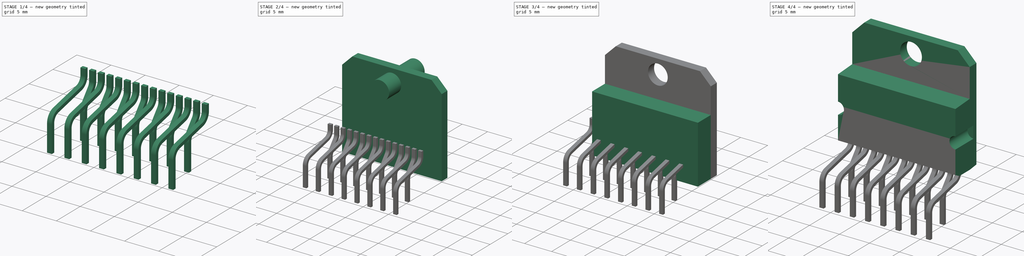
[diagram: build sequence overview — one tinted view per stage of 4, left to right]
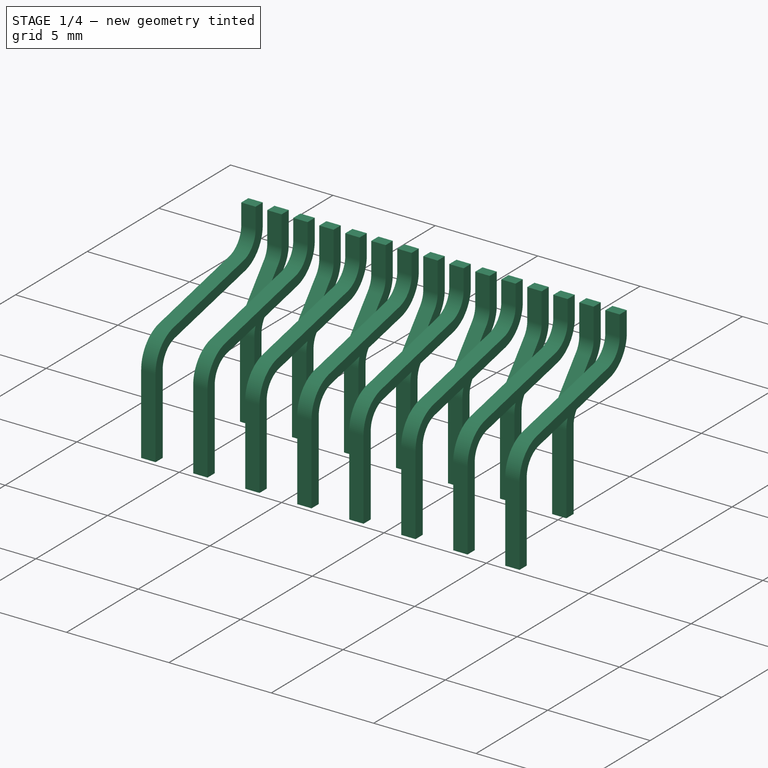
[diagram: stage 1 of 4 — iso view after this stage's code; geometry added in this stage tinted green]
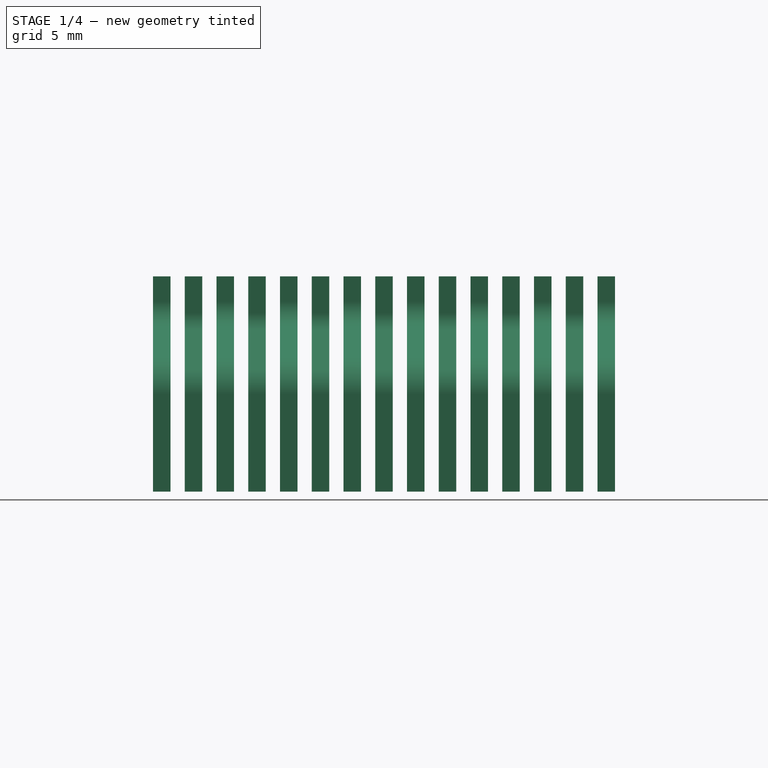
[diagram: stage 1 of 4 — front view after this stage's code; geometry added in this stage tinted green]
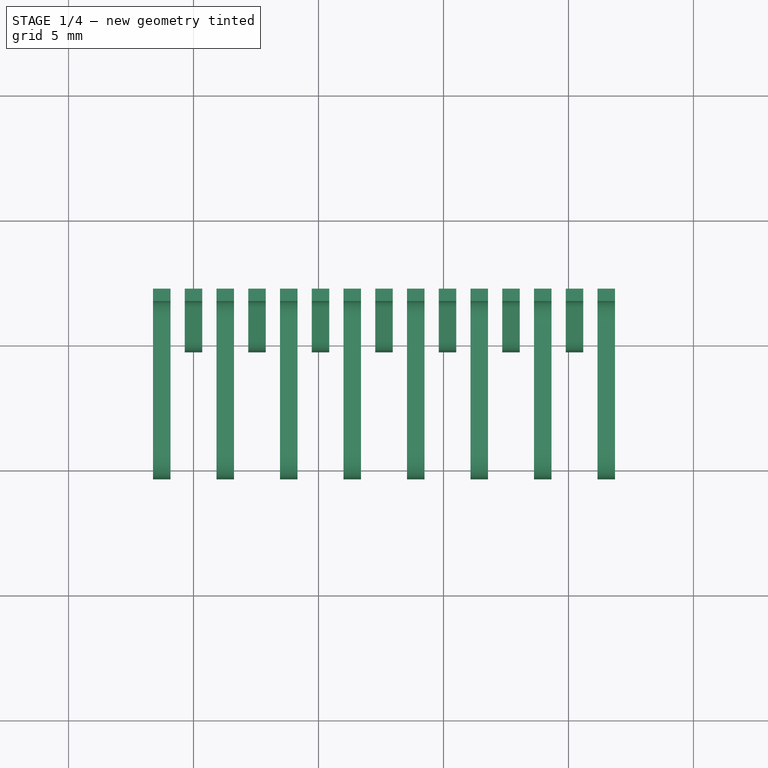
[diagram: stage 1 of 4 — top view after this stage's code; geometry added in this stage tinted green]
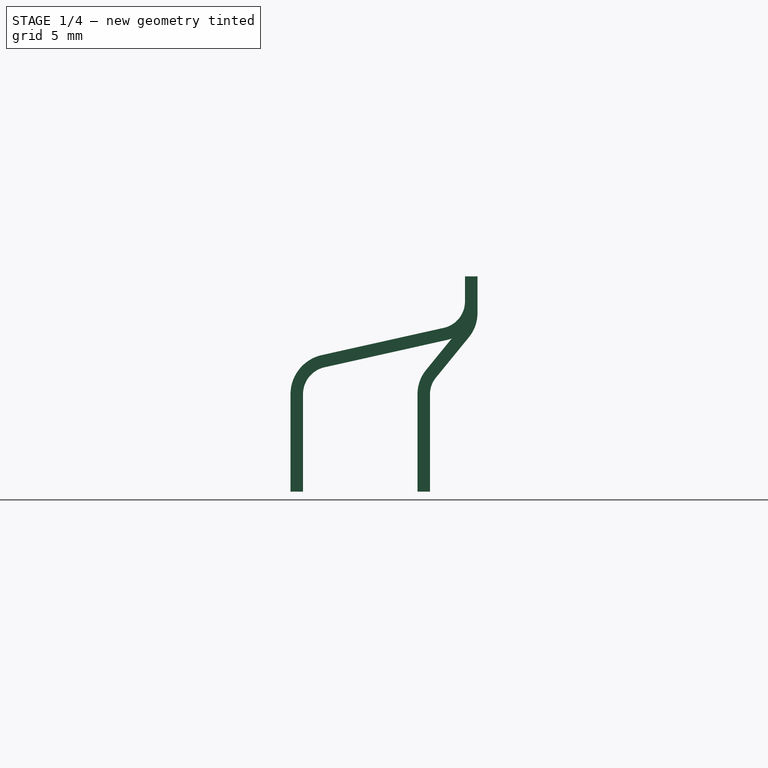
[diagram: stage 1 of 4 — right view after this stage's code; geometry added in this stage tinted green]
FCSTD DOCUMENT  (FreeCAD 0.14R3700 (Git))
Label: l298
License: CC-BY 3.0
LicenseURL: http://creativecommons.org/licenses/by/3.0/
objects: Part::Feature×5, Sketcher::SketchObject×5, Part::FeaturePython×3, Part::Box×2, Part::Cylinder×2, Part::Cut×2, Part::Sweep×2, App::DocumentObjectGroup×1, Part::Chamfer×1, Part::MultiFuse×1, PartDesign::Pocket×1, Part::Part2DObjectPython×1
note: 26 computed .brp shape members not serialized (recipe doc carries the construction recipe); baked Part::Feature solids carry a one-line shape summary decoded from their .brp

FEATURE [Sketcher::SketchObject] Sketch001  label="barrido-1"
  Placement = pos=(0,0,0) rot=(0.57735,0.57735,0.57735;2.0944rad)
  sketch-geometry (5):
    g0: LineSegment StartX=-5.08 StartY=-3.4 StartZ=0 EndX=-5.08 EndY=0.5 EndZ=0
    g1: LineSegment StartX=-4.02992 StartY=1.81041 StartZ=0 EndX=0.849917 EndY=2.9 EndZ=0
    g2: LineSegment StartX=1.9 StartY=5.21041 StartZ=0 EndX=1.9 EndY=4.21041 EndZ=0
    g3: ArcOfCircle CenterX=-3.73732 CenterY=0.5 CenterZ=0 NormalX=0 NormalY=0 NormalZ=1 Radius=1.34268 StartAngle=1.79048 EndAngle=3.14159
    g4: ArcOfCircle CenterX=0.557324 CenterY=4.21041 CenterZ=0 NormalX=0 NormalY=0 NormalZ=1 Radius=1.34268 StartAngle=4.93207 EndAngle=6.28319
  constraints (14):
    c: Tangent(g1,g3)
    c: Tangent(g0,g3)
    c: Tangent(g1,g4)
    c: Tangent(g2,g4)
    c: DistanceY(g2) = -1
    c: Vertical(g2)
    c: DistanceX(g2,g0) = -6.98
    c: Vertical(g0)
    c: Distance(g1) = 5
    c: Equal(g3,g4)
    c: DistanceY(g1,g2) = 3.4
    c: DistanceY(g0) = 0.5
    c: DistanceX(g0) = -5.08
    c: DistanceY(g0) = -3.4
FEATURE [Sketcher::SketchObject] Sketch002  label="seccion-1"
  Placement = pos=(0,0,-3.4) rot=(1,0,0;3.14159rad)
  sketch-geometry (5):
    g0: LineSegment StartX=-0.35 StartY=5.33936 StartZ=0 EndX=0.35 EndY=5.33936 EndZ=0
    g1: LineSegment StartX=0.35 StartY=5.33936 StartZ=0 EndX=0.35 EndY=4.83936 EndZ=0
    g2: LineSegment StartX=0.35 StartY=4.83936 StartZ=0 EndX=-0.35 EndY=4.83936 EndZ=0
    g3: LineSegment StartX=-0.35 StartY=4.83936 StartZ=0 EndX=-0.35 EndY=5.33936 EndZ=0
    g4: LineSegment [constr] StartX=-2.9001 StartY=5.08936 StartZ=0 EndX=2.81398 EndY=5.08936 EndZ=0
  constraints (15):
    c: Coincident(g0,g1)
    c: Coincident(g1,g2)
    c: Coincident(g2,g3)
    c: Coincident(g3,g0)
    c: Horizontal(g0)
    c: Horizontal(g2)
    c: Vertical(g1)
    c: Vertical(g3)
    c: DistanceX(g2) = -0.7
    c: Symmetric(g2,g1,g-2)
    c: DistanceY(g3) = 0.5
    c: Horizontal(g4)
    c: DistanceY(g4) = 5.08936
    c: Symmetric(g2,g0,g4)
    c: Symmetric(g0,g0,g-2)
FEATURE [Part::Sweep] Sweep
  Frenet = false
  Sections = -> [Sketch002]
  Solid = true
  Spine = -> Sketch001 [Edge1,Edge2,Edge3,Edge4,Edge5]
  Transition = 1
FEATURE [Sketcher::SketchObject] Sketch003  label="barrido-2"
  Placement = pos=(0,0,0) rot=(0.57735,0.57735,0.57735;2.0944rad)
  sketch-geometry (5):
    g0: LineSegment StartX=0 StartY=-3.4 StartZ=0 EndX=0 EndY=0.5 EndZ=0
    g1: LineSegment StartX=0.28844 StartY=1.30961 StartZ=0 EndX=1.61156 EndY=2.93082 EndZ=0
    g2: LineSegment StartX=1.9 StartY=3.74042 StartZ=0 EndX=1.9 EndY=5.21328 EndZ=0
    g3: ArcOfCircle CenterX=0.619554 CenterY=3.74042 CenterZ=0 NormalX=0 NormalY=0 NormalZ=1 Radius=1.28045 StartAngle=5.59868 EndAngle=6.28319
    g4: ArcOfCircle CenterX=1.28045 CenterY=0.5 CenterZ=0 NormalX=0 NormalY=0 NormalZ=1 Radius=1.28045 StartAngle=2.45709 EndAngle=3.14159
  constraints (11):
    c: Tangent(g2,g3)
    c: Tangent(g1,g3)
    c: Tangent(g1,g4)
    c: Tangent(g0,g4)
    c: DistanceY(g0) = 0.5
    c: Vertical(g0)
    c: Vertical(g2)
    c: DistanceX(g0,g2) = 1.9
    c: DistanceY(g0) = -3.4
    c: DistanceX(g0) = 0
    c: Equal(g4,g3)
FEATURE [Sketcher::SketchObject] Sketch004  label="seccion-2"
  Placement = pos=(0,5.08,-3.4) rot=(1,0,0;3.14159rad)
  sketch-geometry (5):
    g0: LineSegment StartX=-0.35 StartY=5.33936 StartZ=0 EndX=0.35 EndY=5.33936 EndZ=0
    g1: LineSegment StartX=0.35 StartY=5.33936 StartZ=0 EndX=0.35 EndY=4.83936 EndZ=0
    g2: LineSegment StartX=0.35 StartY=4.83936 StartZ=0 EndX=-0.35 EndY=4.83936 EndZ=0
    g3: LineSegment StartX=-0.35 StartY=4.83936 StartZ=0 EndX=-0.35 EndY=5.33936 EndZ=0
    g4: LineSegment [constr] StartX=-2.9001 StartY=5.08936 StartZ=0 EndX=2.81398 EndY=5.08936 EndZ=0
  constraints (15):
    c: Coincident(g0,g1)
    c: Coincident(g1,g2)
    c: Coincident(g2,g3)
    c: Coincident(g3,g0)
    c: Horizontal(g0)
    c: Horizontal(g2)
    c: Vertical(g1)
    c: Vertical(g3)
    c: DistanceX(g2) = -0.7
    c: Symmetric(g2,g1,g-2)
    c: DistanceY(g3) = 0.5
    c: Horizontal(g4)
    c: DistanceY(g4) = 5.08936
    c: Symmetric(g2,g0,g4)
    c: Symmetric(g0,g0,g-2)
FEATURE [Part::Sweep] Sweep001
  Frenet = false
  Sections = -> [Sketch004]
  Solid = true
  Spine = -> Sketch003 [Edge1,Edge2,Edge3,Edge4,Edge5]
  Transition = 1
FEATURE [Part::FeaturePython] Array001  # Draft array (typed FeaturePython)
  Angle = 360
  ArrayType = 0
  Axis = (0,0,1)
  Base = -> Sweep001
  Center = (0,0,0)
  IntervalX = (2.54,0,0)
  IntervalY = (0,1,0)
  IntervalZ = (0,0,1)
  NumberPolar = 1
  NumberX = 7
  NumberY = 1
  NumberZ = 1
FEATURE [Part::FeaturePython] Array002  # Draft array (typed FeaturePython)
  Angle = 360
  ArrayType = 0
  Axis = (0,0,1)
  Base = -> Sweep
  Center = (0,0,0)
  IntervalX = (2.54,0,0)
  IntervalY = (0,1,0)
  IntervalZ = (0,0,1)
  NumberPolar = 1
  NumberX = 8
  NumberY = 1
  NumberZ = 1
  Placement = pos=(-1.27,0,0) rot=(0,0,1;0rad)
FEATURE [Part::Part2DObjectPython] ShapeString  # Draft 2D object (typed FeaturePython)
  FontFile = C:/Program Files/FreeCAD 0.14/fonts/arial.ttf
  Placement = pos=(3.5,-0.01,8.8469) rot=(1,0,0;1.5708rad)
  Size = 2
  String = L298N
  Tracking = 0
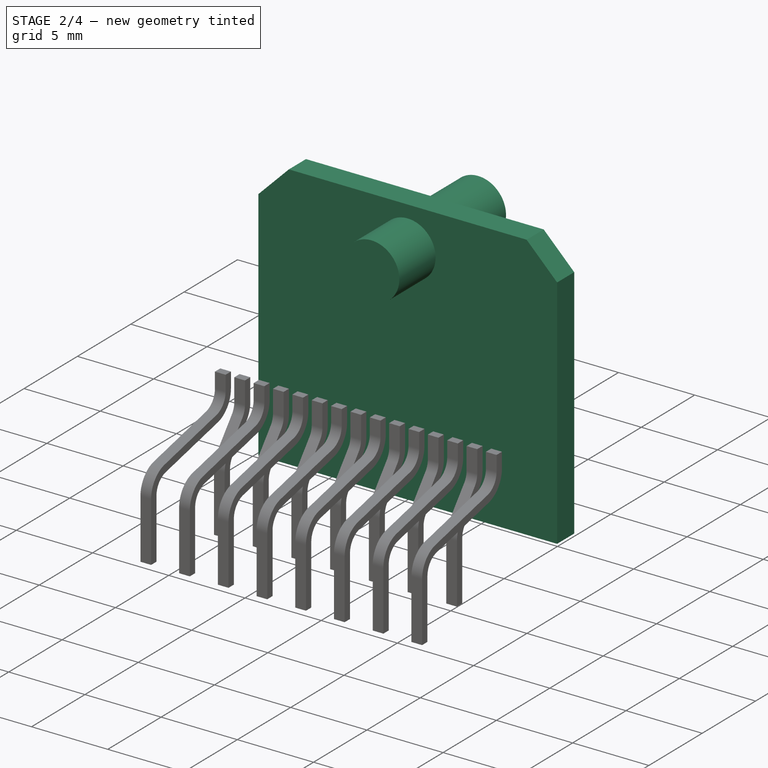
[diagram: stage 2 of 4 — iso view after this stage's code; geometry added in this stage tinted green]
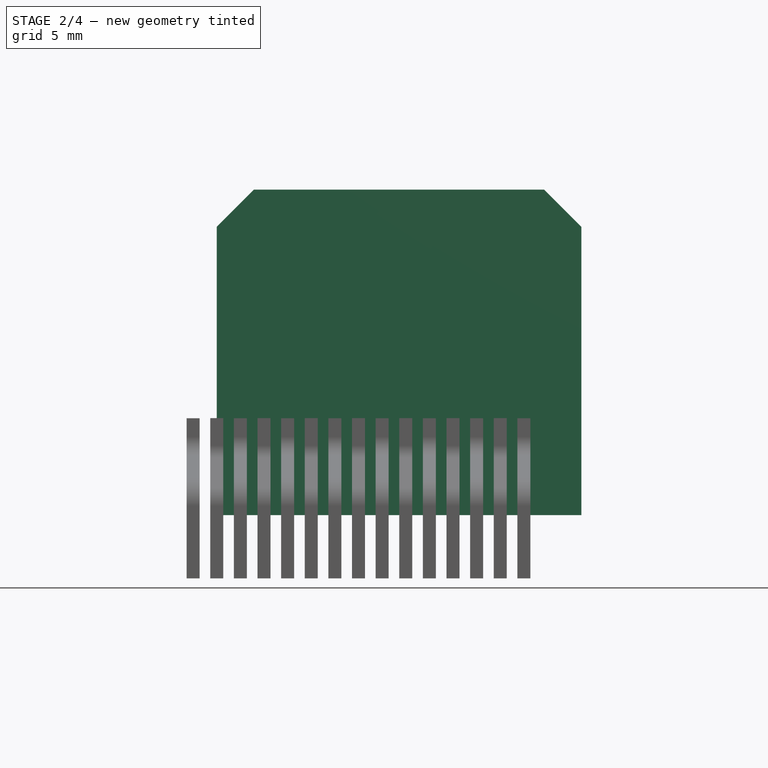
[diagram: stage 2 of 4 — front view after this stage's code; geometry added in this stage tinted green]
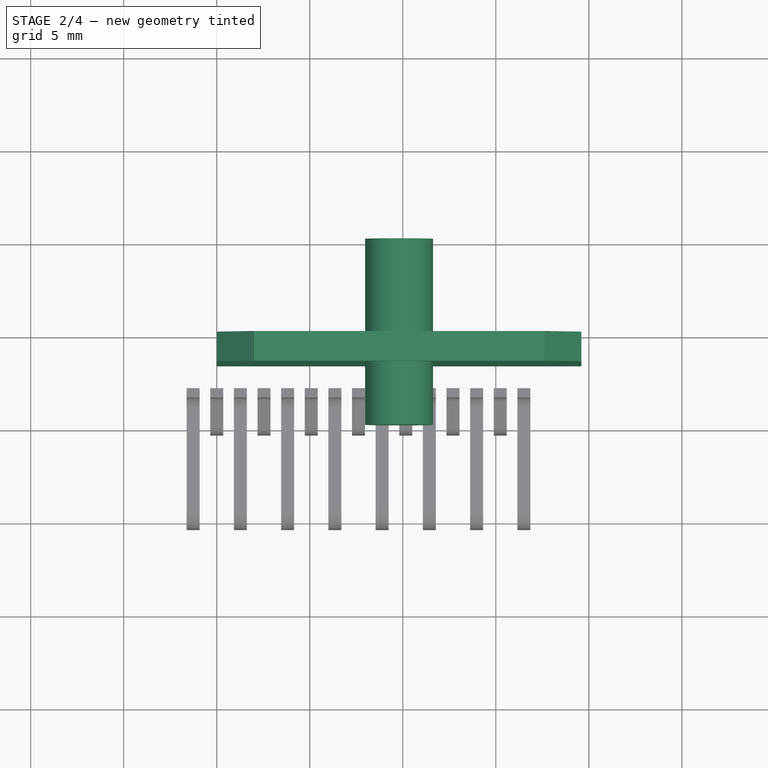
[diagram: stage 2 of 4 — top view after this stage's code; geometry added in this stage tinted green]
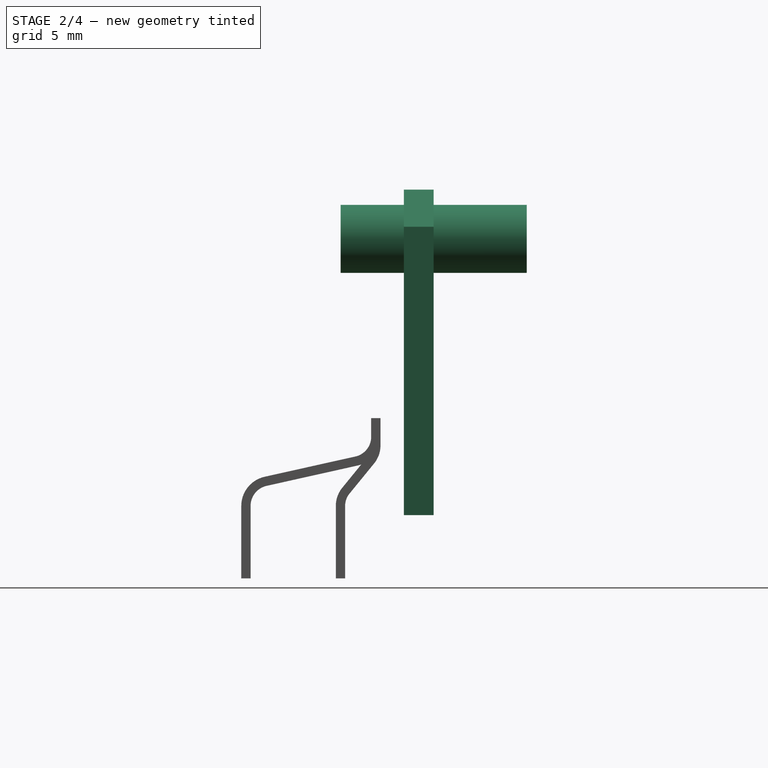
[diagram: stage 2 of 4 — right view after this stage's code; geometry added in this stage tinted green]
FEATURE [Part::Box] Box001  label="Cubo001"
  Height = 17.5
  Length = 19.6
  Placement = pos=(0,3.4,0) rot=(0,0,1;0rad)
  Width = 1.6
FEATURE [Part::Chamfer] Chamfer
  Base = -> Box001
  Edges = 2 edges r=2: [Edge2,Edge6]
FEATURE [Part::Cylinder] Cylinder  label="Cilindro"
  Angle = 360
  Height = 10
  Placement = pos=(9.8,10,14.85) rot=(1,0,0;1.5708rad)
  Radius = 1.825
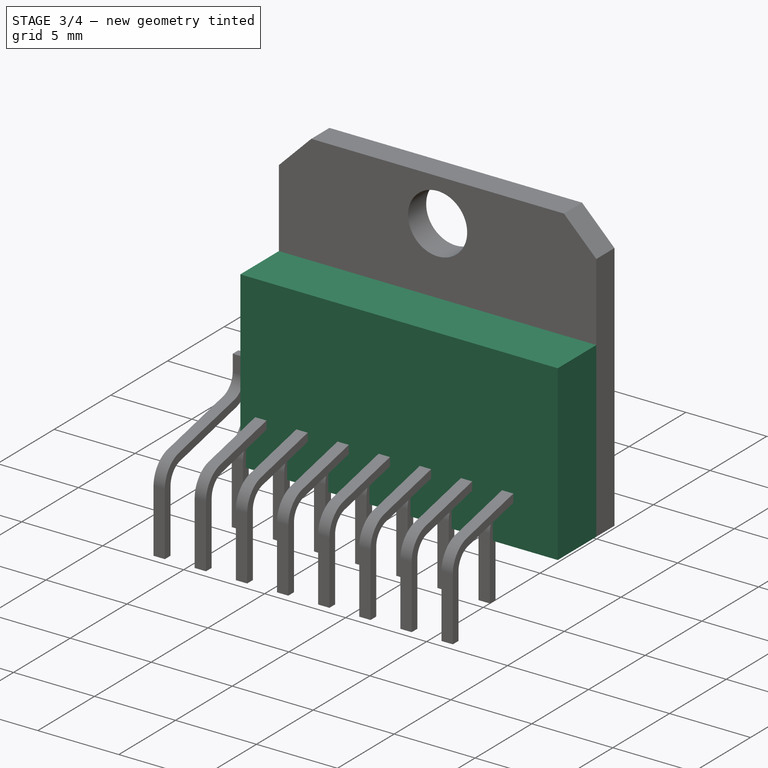
[diagram: stage 3 of 4 — iso view after this stage's code; geometry added in this stage tinted green]
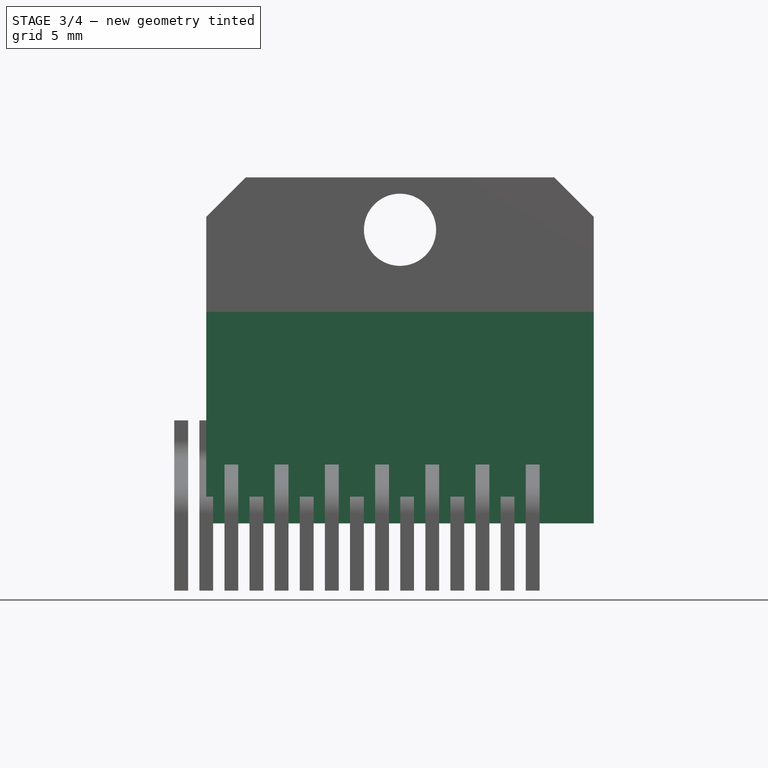
[diagram: stage 3 of 4 — front view after this stage's code; geometry added in this stage tinted green]
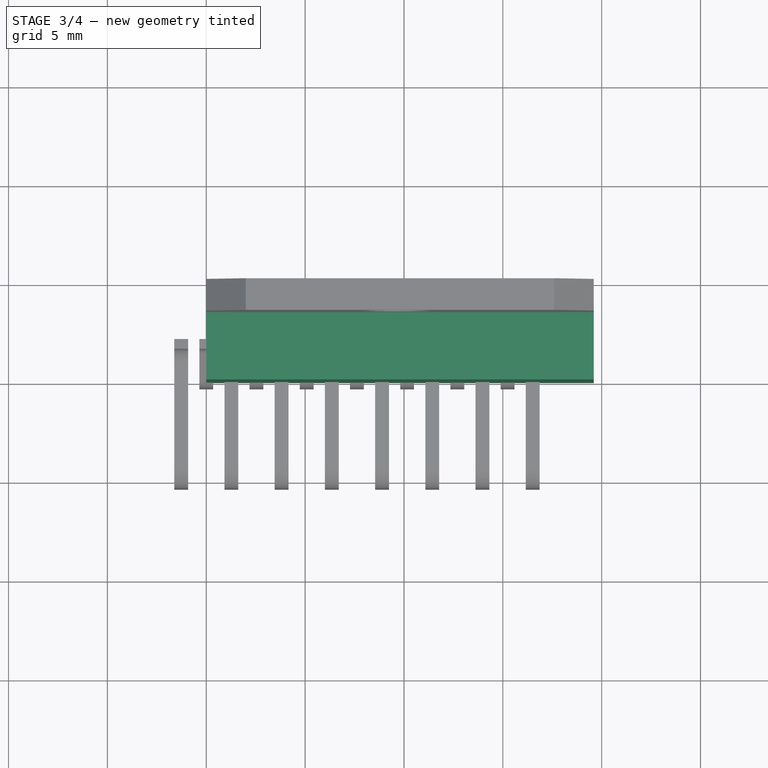
[diagram: stage 3 of 4 — top view after this stage's code; geometry added in this stage tinted green]
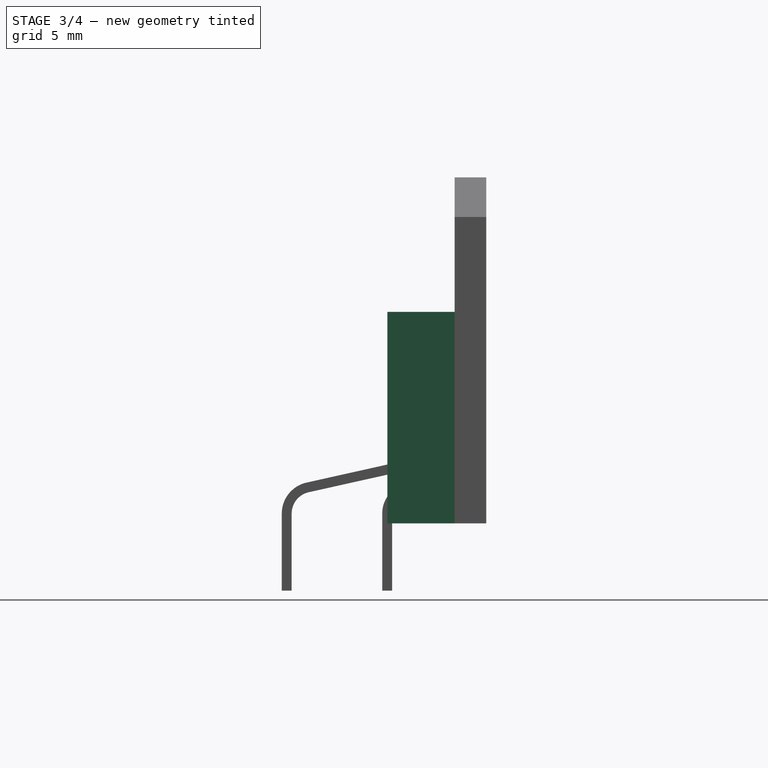
[diagram: stage 3 of 4 — right view after this stage's code; geometry added in this stage tinted green]
FEATURE [Part::Feature] Shape  label="FrontSilk"
  shape: bbox 19.89 x 9.38 x 2e-07 mm, 35 faces, 0 solids (baked)
FEATURE [Part::Feature] Shape001  label="TopPads"
  shape: bbox 19.28 x 7.08 x 0.01 mm, 186 faces, 15 solids (baked)
FEATURE [Part::Feature] Shape002  label="BotPads"
  shape: bbox 19.28 x 7.08 x 0.01 mm, 186 faces, 15 solids (baked)
FEATURE [Part::Feature] Shape004  label="PTHs"
  shape: bbox 18.59 x 5.89 x 1.58 mm, 154 faces (baked)
FEATURE [Part::Feature] Shape005002  label="Pcb"
  shape: bbox 31.82 x 18.02 x 1.58 mm, 66 faces (baked)
FEATURE [App::DocumentObjectGroup] _L298_Multiwatt15V__fp
  Group = -> [Shape,Shape001,Shape002,Shape004,Shape005002]
FEATURE [Part::Box] Box  label="Cubo"
  Height = 10.7
  Length = 19.6
  Width = 5
FEATURE [Part::Cut] Cut
  Base = -> Chamfer
  Tool = -> Cylinder
FEATURE [Part::MultiFuse] Fusion
  Shapes = -> [Cut,Box]
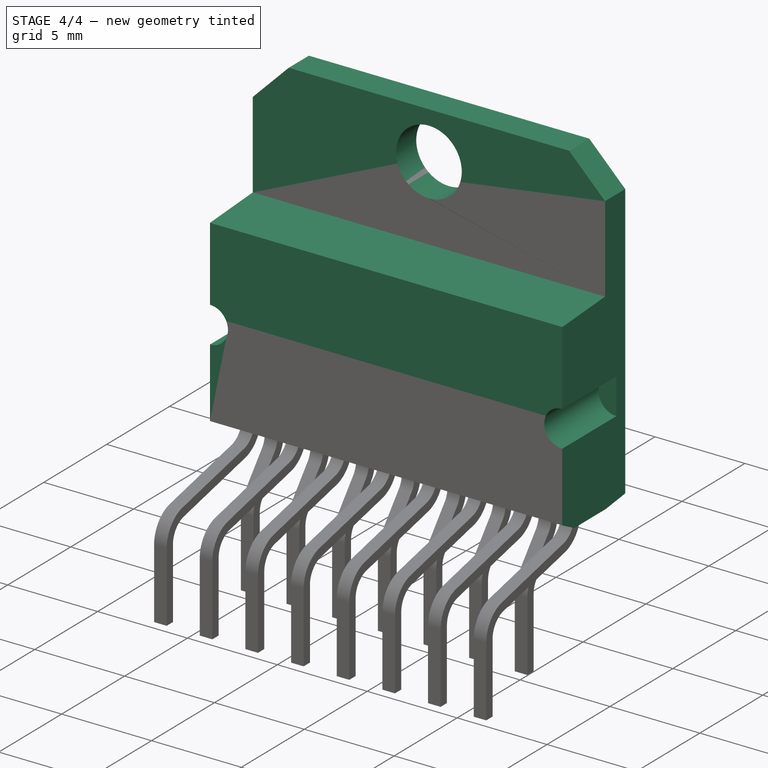
[diagram: stage 4 of 4 — iso view after this stage's code; geometry added in this stage tinted green]
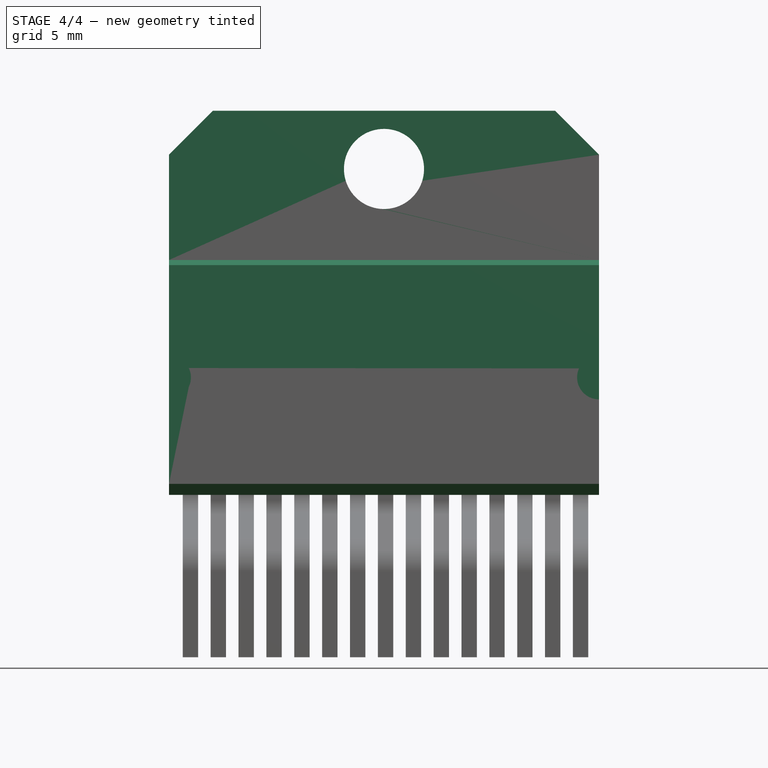
[diagram: stage 4 of 4 — front view after this stage's code; geometry added in this stage tinted green]
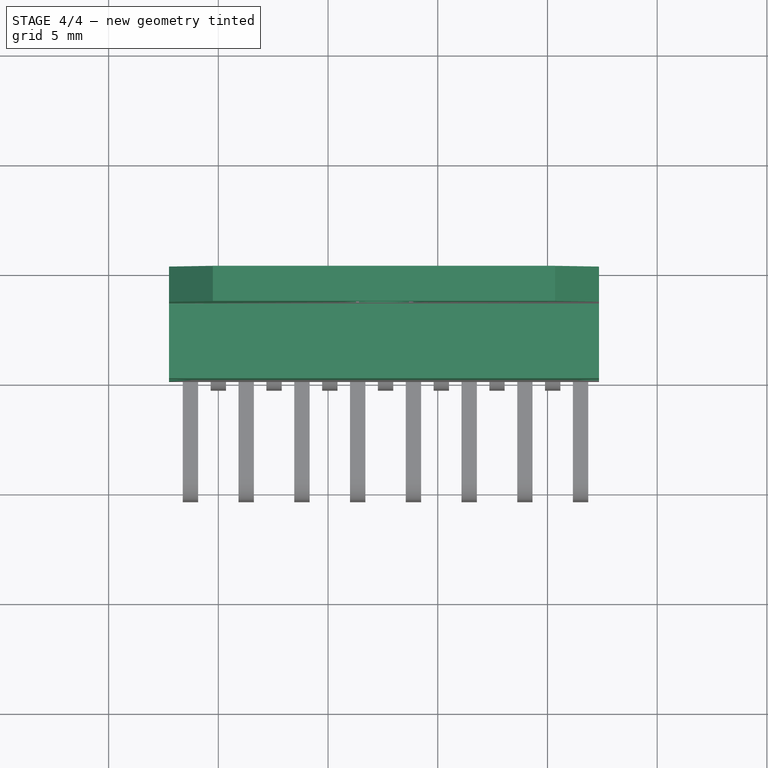
[diagram: stage 4 of 4 — top view after this stage's code; geometry added in this stage tinted green]
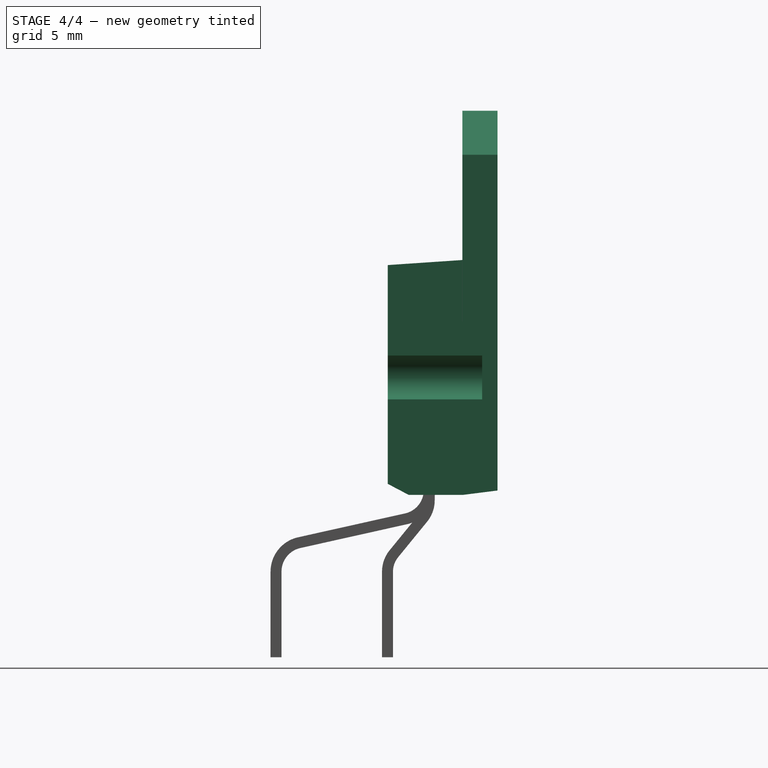
[diagram: stage 4 of 4 — right view after this stage's code; geometry added in this stage tinted green]
FEATURE [Part::Cylinder] Cylinder001  label="Cilindro001"
  Angle = 360
  Height = 10
  Placement = pos=(0,4.3,5.35) rot=(1,0,0;1.5708rad)
  Radius = 1
FEATURE [Part::FeaturePython] Array  # Draft array (typed FeaturePython)
  Angle = 360
  ArrayType = 0
  Axis = (0,0,1)
  Base = -> Cylinder001
  Center = (0,0,0)
  IntervalX = (19.6,0,0)
  IntervalY = (0,1,0)
  IntervalZ = (0,0,1)
  NumberPolar = 1
  NumberX = 2
  NumberY = 1
  NumberZ = 1
FEATURE [Sketcher::SketchObject] Sketch
  Placement = pos=(19.6,0,0) rot=(0.57735,0.57735,0.57735;2.0944rad)
  Support = -> Fusion [Face3]
  sketch-geometry (9):
    g0: LineSegment StartX=3.40002 StartY=10.7002 StartZ=0 EndX=-0.022797 EndY=10.7081 EndZ=0
    g1: LineSegment StartX=-0.022797 StartY=10.7081 StartZ=0 EndX=-0.047538 EndY=10.4663 EndZ=0
    g2: LineSegment StartX=-0.047538 StartY=10.4663 StartZ=0 EndX=3.40002 EndY=10.7002 EndZ=0
    g3: LineSegment StartX=-0.28005 StartY=0.647481 StartZ=0 EndX=0.962411 EndY=-0.006446 EndZ=0
    g4: LineSegment StartX=0.962411 StartY=-0.006446 StartZ=0 EndX=-0.389037 EndY=-0.137231 EndZ=0
    g5: LineSegment StartX=-0.389037 StartY=-0.137231 StartZ=0 EndX=-0.28005 EndY=0.647481 EndZ=0
    g6: LineSegment StartX=3.40374 StartY=-0.006446 StartZ=0 EndX=5.12574 EndY=0.21153 EndZ=0
    g7: LineSegment StartX=5.12574 StartY=0.21153 StartZ=0 EndX=5.19114 EndY=-0.377004 EndZ=0
    g8: LineSegment StartX=5.19114 StartY=-0.377004 StartZ=0 EndX=3.40374 EndY=-0.006446 EndZ=0
  constraints (9):
    c: Coincident(g0,g1)
    c: Coincident(g1,g2)
    c: Coincident(g2,g0)
    c: Coincident(g3,g4)
    c: Coincident(g4,g5)
    c: Coincident(g5,g3)
    c: Coincident(g6,g7)
    c: Coincident(g7,g8)
    c: Coincident(g8,g6)
FEATURE [PartDesign::Pocket] Pocket
  Length = 100
  Midplane = true
  Sketch = -> Sketch
  Type = 0
FEATURE [Part::Cut] Cut001  label="encapsulado"
  Base = -> Pocket
  Placement = pos=(-2.25,0,4) rot=(0,0,1;0rad)
  Tool = -> Array
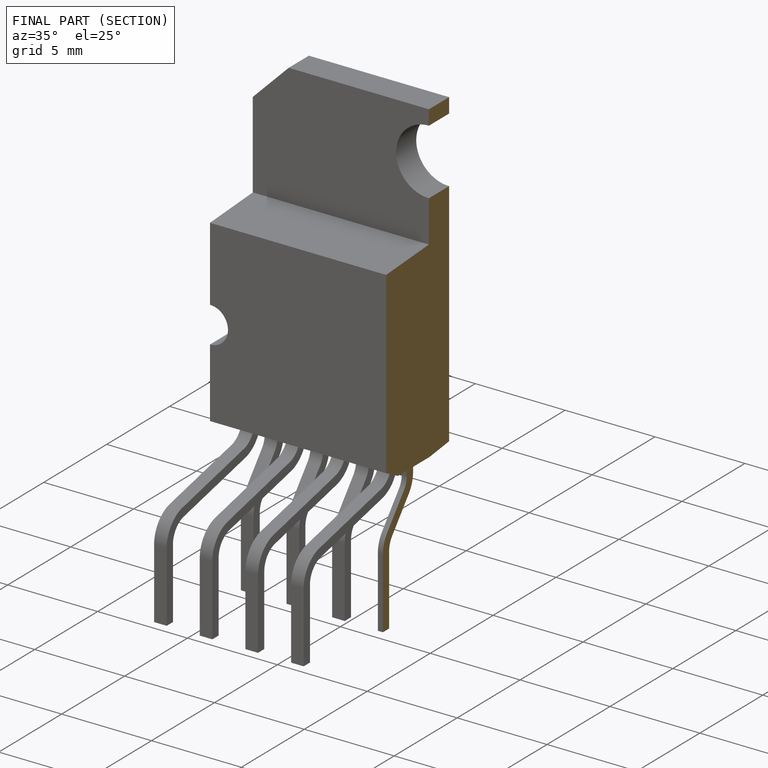
[diagram: finished part — half-section view (interior)]
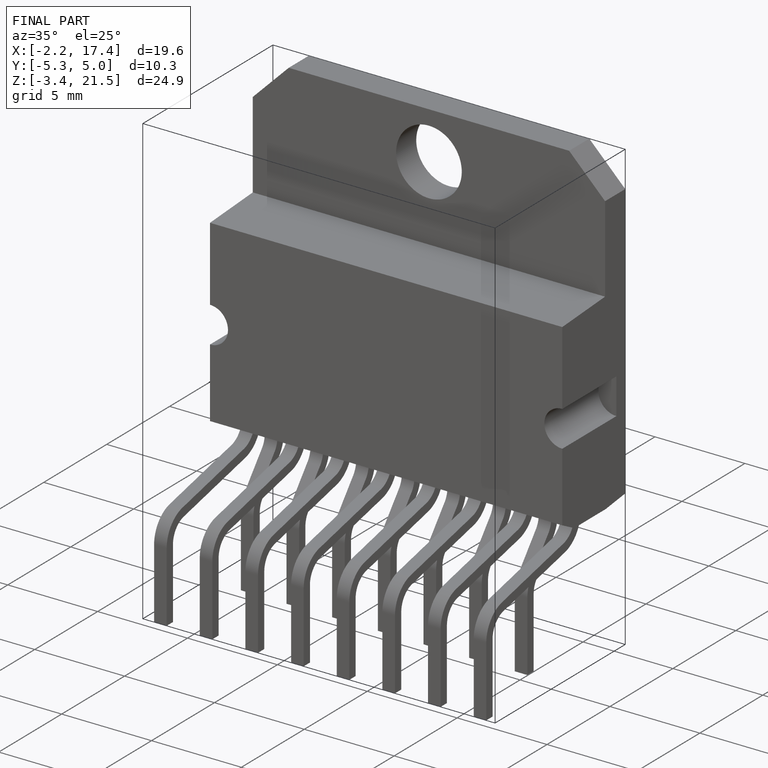
[diagram: finished part — iso view with bounding-box wireframe]
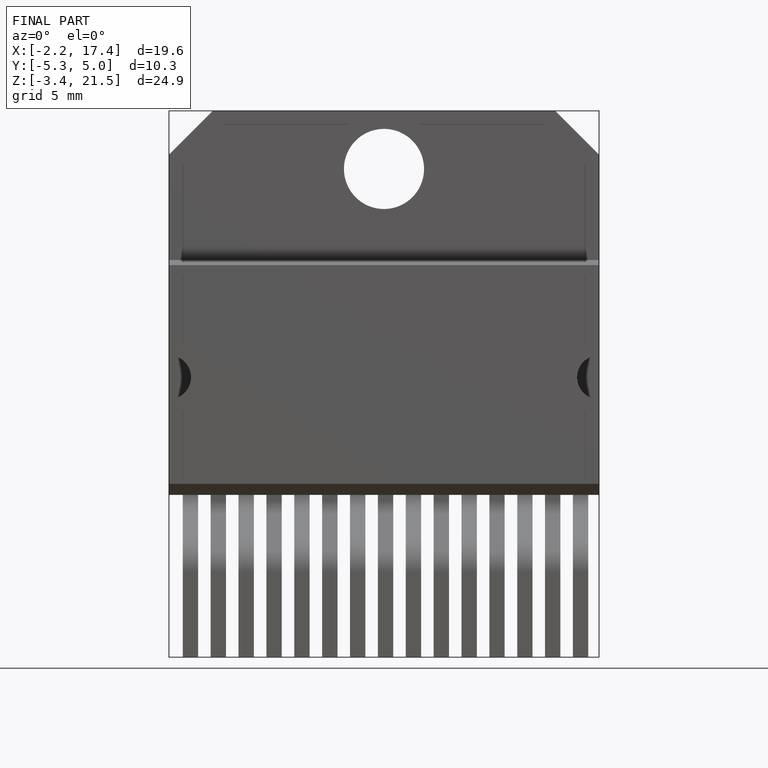
[diagram: finished part — front view with bounding-box wireframe]
